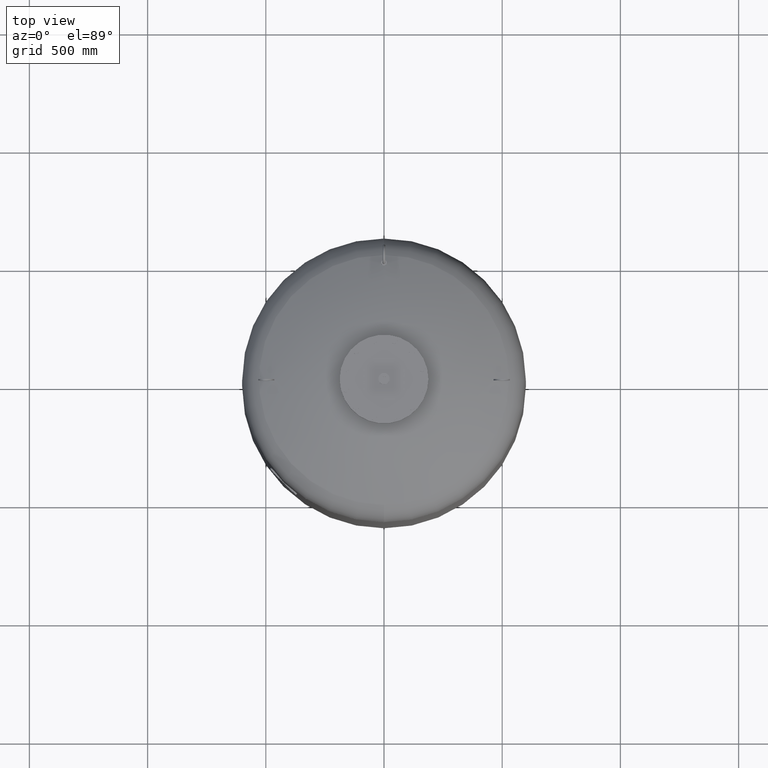
[diagram: clean part render]
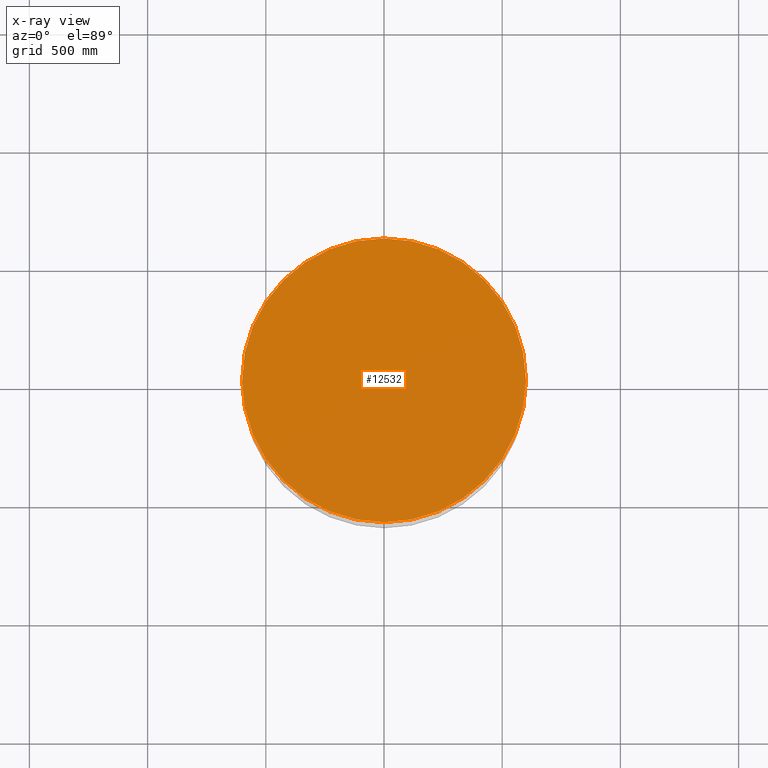
[diagram: x-ray — body ghosted, one internal face saturated and labeled with its STEP entity id]
A machine part, top view, then the same camera in x-ray: the body is ghosted and one INTERNAL B-rep face — a face not visible from any outside direction — is saturated and labeled: STEP entity #12532.
In plain terms, the highlighted planar face has unit normal (0, 0, 1).
Its self-contained STEP definition (entity closure, byte-faithful):
#12322=CARTESIAN_POINT('',(600.0,0.0,2145.0));
#12323=VERTEX_POINT('',#12322);
#12332=CARTESIAN_POINT('',(-600.000000000000110,-7.347638E-014,2145.0));
#12333=VERTEX_POINT('',#12332);
#12334=CARTESIAN_POINT('',(1.668796E-014,0.0,2145.0));
#12335=DIRECTION('',(0.0,0.0,1.0));
#12336=DIRECTION('',(1.0,0.0,0.0));
#12337=AXIS2_PLACEMENT_3D('',#12334,#12335,#12336);
#12338=CIRCLE('',#12337,600.0);
#12339=EDGE_CURVE('',#12333,#12323,#12338,.T.);
#12513=CARTESIAN_POINT('',(1.668796E-014,0.0,2145.0));
#12514=DIRECTION('',(0.0,0.0,1.0));
#12515=DIRECTION('',(1.0,0.0,0.0));
#12516=AXIS2_PLACEMENT_3D('',#12513,#12514,#12515);
#12517=CIRCLE('',#12516,600.0);
#12518=EDGE_CURVE('',#12323,#12333,#12517,.T.);
#12523=CARTESIAN_POINT('',(300.0,0.0,2145.0));
#12524=DIRECTION('',(0.0,0.0,1.0));
#12525=DIRECTION('',(1.0,0.0,0.0));
#12526=AXIS2_PLACEMENT_3D('',#12523,#12524,#12525);
#12527=PLANE('',#12526);
#12528=ORIENTED_EDGE('',*,*,#12518,.T.);
#12529=ORIENTED_EDGE('',*,*,#12339,.T.);
#12530=EDGE_LOOP('',(#12528,#12529));
#12531=FACE_OUTER_BOUND('',#12530,.T.);
#12532=ADVANCED_FACE('',(#12531),#12527,.T.);